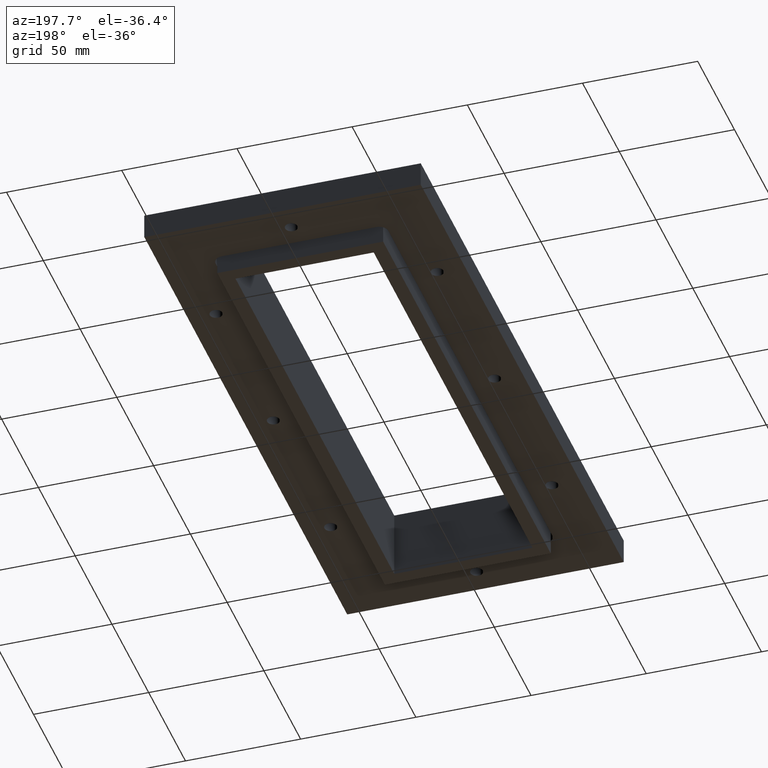
[diagram: clean part render]
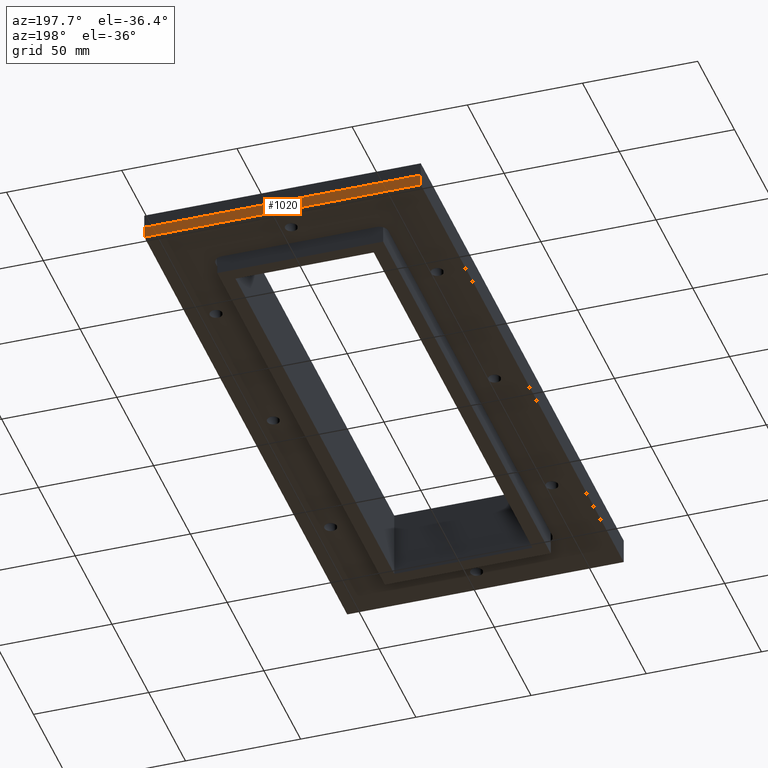
[diagram: same view with one face highlighted and labeled with its STEP entity id]
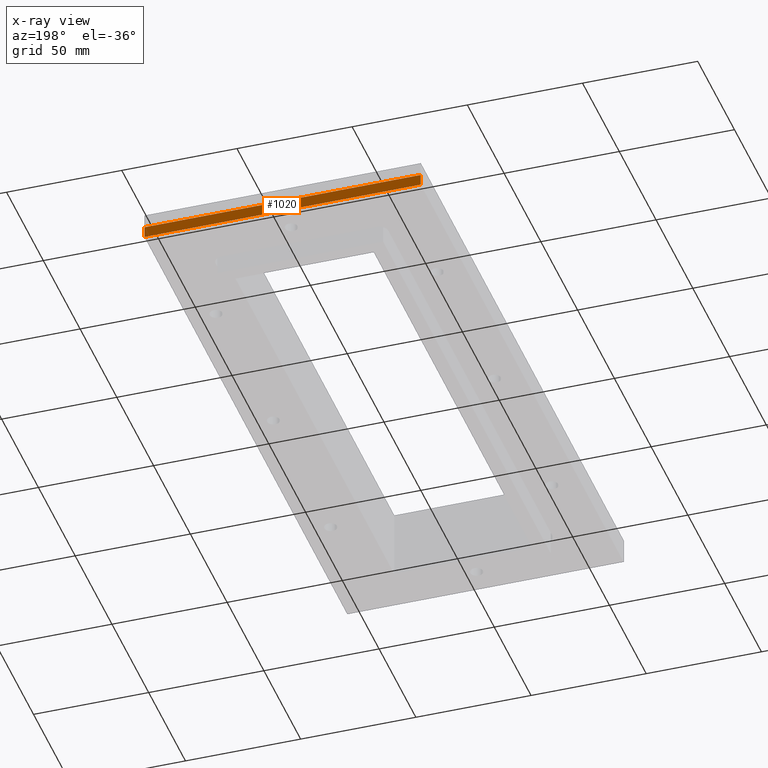
[diagram: x-ray of the same camera — body ghosted, the highlighted face saturated]
A machine part, auxiliary view. The second image highlights one B-rep face of the part: STEP entity #1020.
The next image is the same camera in x-ray: the body ghosted, the highlighted face saturated — about 0% of this face is hidden behind the body in this view.
In plain terms, the highlighted planar face has unit normal (0, 1, 0).
Its self-contained STEP definition (entity closure, byte-faithful):
#104=PLANE('',#1131);
#154=FACE_OUTER_BOUND('',#224,.T.);
#224=EDGE_LOOP('',(#909,#910,#911,#912));
#326=LINE('',#1658,#418);
#334=LINE('',#1673,#426);
#335=LINE('',#1675,#427);
#336=LINE('',#1676,#428);
#418=VECTOR('',#1387,10.);
#426=VECTOR('',#1399,10.);
#427=VECTOR('',#1402,10.);
#428=VECTOR('',#1403,10.);
#550=VERTEX_POINT('',#1655);
#551=VERTEX_POINT('',#1657);
#555=VERTEX_POINT('',#1669);
#556=VERTEX_POINT('',#1671);
#678=EDGE_CURVE('',#550,#551,#326,.T.);
#686=EDGE_CURVE('',#555,#556,#334,.T.);
#687=EDGE_CURVE('',#550,#555,#335,.T.);
#688=EDGE_CURVE('',#551,#556,#336,.T.);
#909=ORIENTED_EDGE('',*,*,#687,.T.);
#910=ORIENTED_EDGE('',*,*,#686,.T.);
#911=ORIENTED_EDGE('',*,*,#688,.F.);
#912=ORIENTED_EDGE('',*,*,#678,.F.);
#1020=ADVANCED_FACE('',(#154),#104,.T.);
#1131=AXIS2_PLACEMENT_3D('',#1674,#1400,#1401);
#1387=DIRECTION('',(0.,0.,-1.));
#1399=DIRECTION('',(0.,0.,-1.));
#1400=DIRECTION('center_axis',(0.,1.,0.));
#1401=DIRECTION('ref_axis',(1.,0.,0.));
#1402=DIRECTION('',(1.,0.,0.));
#1403=DIRECTION('',(1.,0.,0.));
#1655=CARTESIAN_POINT('',(-60.,138.,-3.00000000000003));
#1657=CARTESIAN_POINT('',(-60.,138.,-8.00000000000003));
#1658=CARTESIAN_POINT('',(-60.,138.,-3.00000000000003));
#1669=CARTESIAN_POINT('',(60.,138.,-3.00000000000003));
#1671=CARTESIAN_POINT('',(60.,138.,-8.00000000000003));
#1673=CARTESIAN_POINT('',(60.,138.,-3.00000000000003));
#1674=CARTESIAN_POINT('Origin',(-60.,138.,-3.00000000000003));
#1675=CARTESIAN_POINT('',(-60.,138.,-3.00000000000003));
#1676=CARTESIAN_POINT('',(-60.,138.,-8.00000000000003));